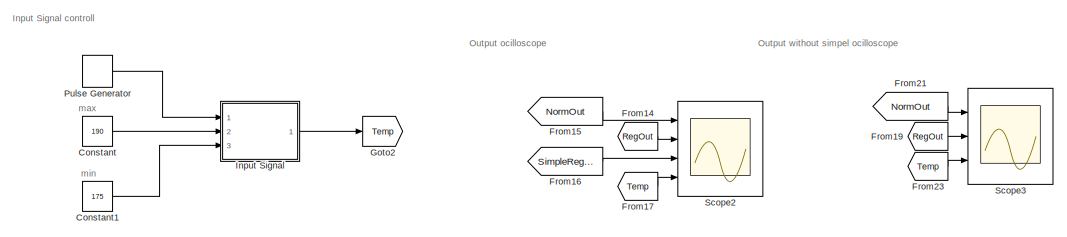
[diagram: root canvas - part 1/12, top center region]
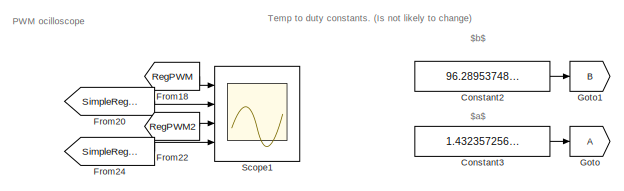
[diagram: root canvas - part 2/12, top right region]
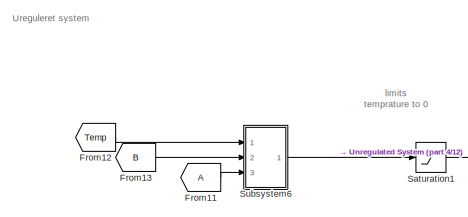
[diagram: root canvas - part 3/12, top left region]
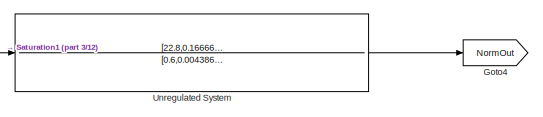
[diagram: root canvas - part 4/12, top right region]
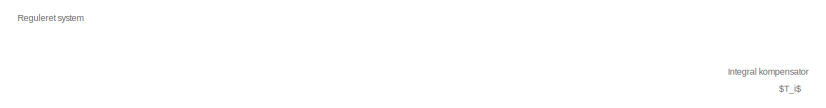
[diagram: root canvas - part 5/12, middle left region]
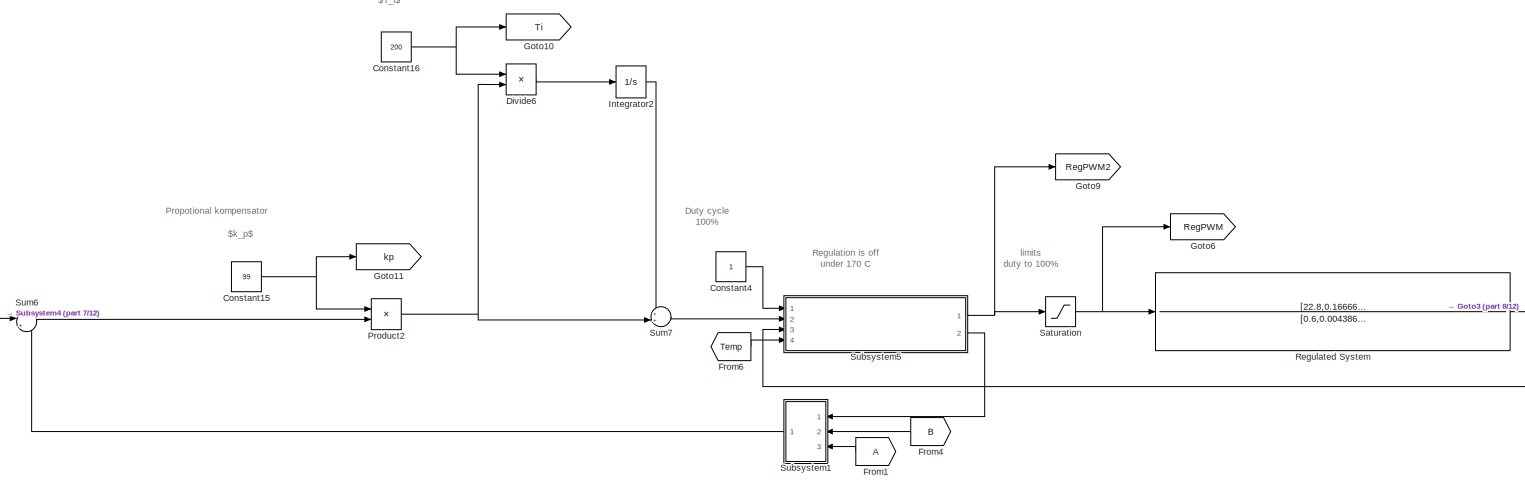
[diagram: root canvas - part 6/12, central region]
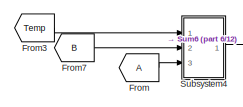
[diagram: root canvas - part 7/12, middle left region]
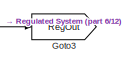
[diagram: root canvas - part 8/12, middle right region]
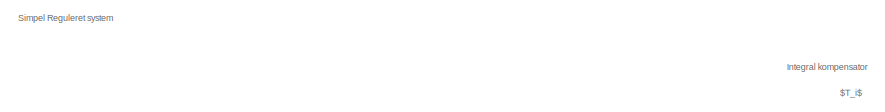
[diagram: root canvas - part 9/12, bottom left region]
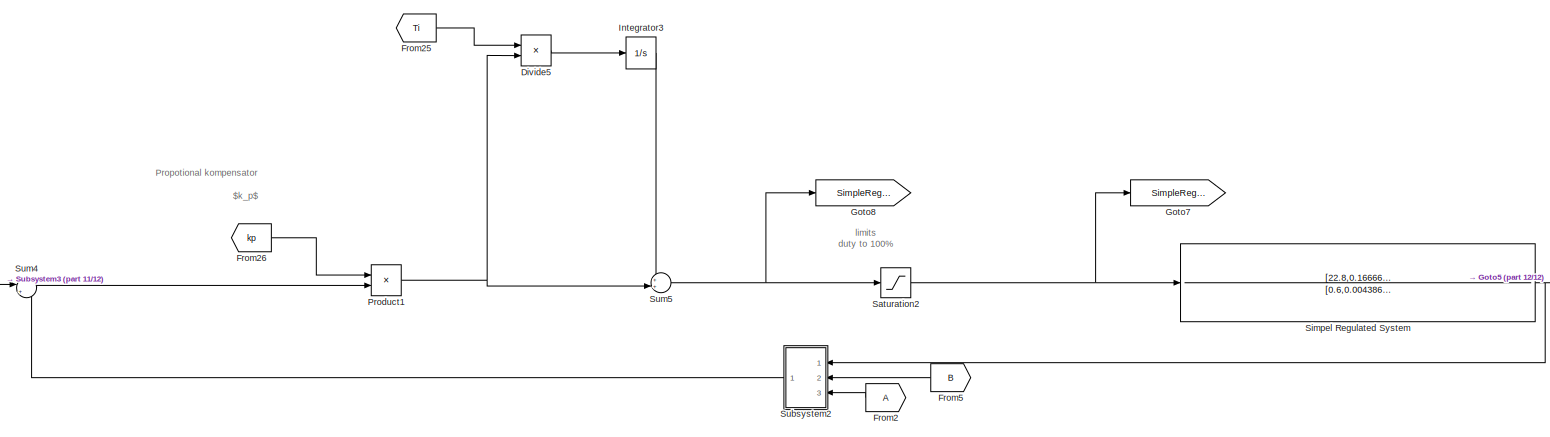
[diagram: root canvas - part 10/12, bottom center region]
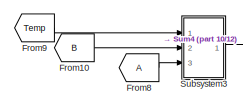
[diagram: root canvas - part 11/12, bottom left region]
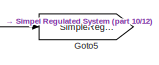
[diagram: root canvas - part 12/12, bottom right region]
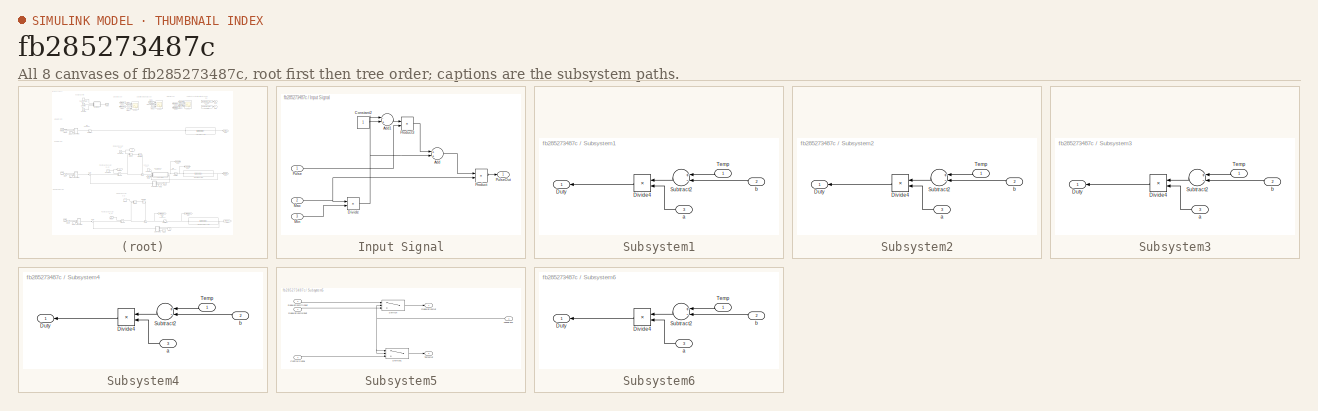
[diagram: thumbnail index - all 8 canvases of the model, root first then tree order]
MODEL slx_fb285273487c
KIND model
CONFIG AbsTol = auto
CONFIG EnableMultiTasking = off
CONFIG FixedStep = auto
CONFIG MaxStep = auto
CONFIG MinStep = auto
CONFIG RelTol = 1e-3
CONFIG SampleTimeConstraint = Unconstrained
CONFIG Solver = VariableStepAuto
CONFIG SolverName = VariableStepAuto
CONFIG StartTime = 0.0
CONFIG StopTime = 28800
BLOCK [Constant] Constant
  Value = 190
BLOCK [Constant] Constant1
  Value = 175
BLOCK [Constant] Constant15
  Value = 99
BLOCK [Constant] Constant16
  Value = 200
BLOCK [Constant] Constant2
  Value = 96.289537480061580
BLOCK [Constant] Constant3
  Value = 1.432357256778349e+02
BLOCK [Constant] Constant4
BLOCK [Product] Divide5
  InputSameDT = off
  Inputs = /*
  OutDataTypeStr = Inherit: Inherit via internal rule
  Ports = [2, 1]
  RndMeth = Floor
  SaturateOnIntegerOverflow = off
BLOCK [Product] Divide6
  InputSameDT = off
  Inputs = /*
  OutDataTypeStr = Inherit: Inherit via internal rule
  Ports = [2, 1]
  RndMeth = Floor
  SaturateOnIntegerOverflow = off
BLOCK [From] From
BLOCK [From] From1
BLOCK [From] From10
  GotoTag = B
BLOCK [From] From11
BLOCK [From] From12
  GotoTag = Temp
BLOCK [From] From13
  GotoTag = B
BLOCK [From] From14
  GotoTag = RegOut
BLOCK [From] From15
  GotoTag = NormOut
BLOCK [From] From16
  GotoTag = SimpleRegOut
BLOCK [From] From17
  GotoTag = Temp
BLOCK [From] From18
  GotoTag = RegPWM
BLOCK [From] From19
  GotoTag = RegOut
BLOCK [From] From2
BLOCK [From] From20
  GotoTag = SimpleRegPWM
BLOCK [From] From21
  GotoTag = NormOut
BLOCK [From] From22
  GotoTag = RegPWM2
BLOCK [From] From23
  GotoTag = Temp
BLOCK [From] From24
  GotoTag = SimpleRegPWM2
BLOCK [From] From25
  GotoTag = Ti
BLOCK [From] From26
  GotoTag = kp
BLOCK [From] From3
  GotoTag = Temp
BLOCK [From] From4
  GotoTag = B
BLOCK [From] From5
  GotoTag = B
BLOCK [From] From6
  GotoTag = Temp
BLOCK [From] From7
  GotoTag = B
BLOCK [From] From8
BLOCK [From] From9
  GotoTag = Temp
BLOCK [Goto] Goto
BLOCK [Goto] Goto1
  GotoTag = B
BLOCK [Goto] Goto10
  GotoTag = Ti
BLOCK [Goto] Goto11
  GotoTag = kp
BLOCK [Goto] Goto2
  GotoTag = Temp
BLOCK [Goto] Goto3
  GotoTag = RegOut
BLOCK [Goto] Goto4
  GotoTag = NormOut
BLOCK [Goto] Goto5
  GotoTag = SimpleRegOut
BLOCK [Goto] Goto6
  GotoTag = RegPWM
BLOCK [Goto] Goto7
  GotoTag = SimpleRegPWM
BLOCK [Goto] Goto8
  GotoTag = SimpleRegPWM2
BLOCK [Goto] Goto9
  GotoTag = RegPWM2
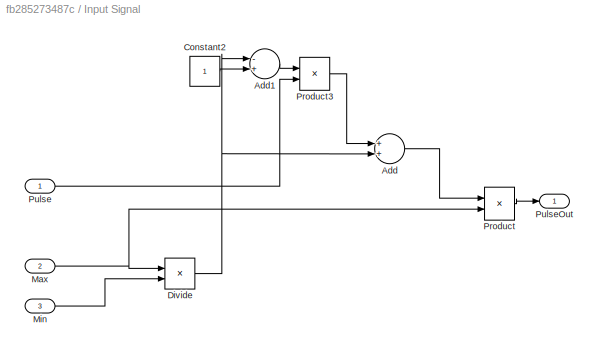
BLOCK [SubSystem] Input Signal
  Ports = [3, 1]
  RequestExecContextInheritance = off
BLOCK [Sum] Input Signal/Add
  InputSameDT = off
  OutDataTypeStr = Inherit: Inherit via internal rule
  Ports = [2, 1]
  SaturateOnIntegerOverflow = off
BLOCK [Sum] Input Signal/Add1
  InputSameDT = off
  Inputs = -+
  OutDataTypeStr = Inherit: Inherit via internal rule
  Ports = [2, 1]
  SaturateOnIntegerOverflow = off
BLOCK [Constant] Input Signal/Constant2
BLOCK [Product] Input Signal/Divide
  InputSameDT = off
  Inputs = /*
  OutDataTypeStr = Inherit: Inherit via internal rule
  Ports = [2, 1]
  RndMeth = Floor
  SaturateOnIntegerOverflow = off
BLOCK [Inport] Input Signal/Max
  IconDisplay = Port number
  Port = 2
BLOCK [Inport] Input Signal/Min
  IconDisplay = Port number
  Port = 3
BLOCK [Product] Input Signal/Product
  InputSameDT = off
  OutDataTypeStr = Inherit: Inherit via internal rule
  Ports = [2, 1]
  RndMeth = Floor
  SaturateOnIntegerOverflow = off
BLOCK [Product] Input Signal/Product3
  InputSameDT = off
  OutDataTypeStr = Inherit: Inherit via internal rule
  Ports = [2, 1]
  RndMeth = Floor
  SaturateOnIntegerOverflow = off
BLOCK [Inport] Input Signal/Pulse
  IconDisplay = Port number
BLOCK [Outport] Input Signal/PulseOut
  IconDisplay = Port number
BLOCK [Integrator] Integrator2
  Ports = [1, 1]
BLOCK [Integrator] Integrator3
  Ports = [1, 1]
BLOCK [Product] Product1
  InputSameDT = off
  OutDataTypeStr = Inherit: Inherit via internal rule
  Ports = [2, 1]
  RndMeth = Floor
  SaturateOnIntegerOverflow = off
BLOCK [Product] Product2
  InputSameDT = off
  OutDataTypeStr = Inherit: Inherit via internal rule
  Ports = [2, 1]
  RndMeth = Floor
  SaturateOnIntegerOverflow = off
BLOCK [DiscretePulseGenerator] Pulse Generator
  Period = 14400
  PhaseDelay = 7200
  Ports = [0, 1]
  PulseType = Time based
  PulseWidth = 50
BLOCK [TransferFcn] Regulated System
  Denominator = [0.6,0.004386,1.1094e-05]
  Numerator = [22.8,0.166668,0.00323575]
BLOCK [Saturate] Saturation
  InputPortMap = u0
  LowerLimit = 0
  Ports = [1, 1]
  UpperLimit = 1
BLOCK [Saturate] Saturation1
  InputPortMap = u0
  LowerLimit = 0
  Ports = [1, 1]
  UpperLimit = 400
BLOCK [Saturate] Saturation2
  InputPortMap = u0
  LowerLimit = 0
  Ports = [1, 1]
  UpperLimit = 1
BLOCK [Scope] Scope1
  Floating = off
  NumInputPorts = 4
  Ports = [4]
  ScopeSpecificationString = Simulink.scopes.TimeScopeBlockCfg('CurrentConfiguration', extmgr.ConfigurationSet(extmgr.Configuration('Core','General UI',true),extmgr.Configuration('Core','Source UI',true),extmgr.Configuration('Sources','WiredSimulink',true),extmgr.Configuration('Visuals','Time Domain',true,'SerializedDisplays',{struct('MinYLimReal','-2.28213','MaxYLimReal','11.32673','YLabelReal','','MinYLimMag','0.00000','Max...<+1756ch>
BLOCK [Scope] Scope2
  Floating = off
  NumInputPorts = 4
  Ports = [4]
  ScopeSpecificationString = Simulink.scopes.TimeScopeBlockCfg('CurrentConfiguration', extmgr.ConfigurationSet(extmgr.Configuration('Core','General UI',true),extmgr.Configuration('Core','Source UI',true),extmgr.Configuration('Sources','WiredSimulink',true,'DataLoggingVariableName','ScopeData2'),extmgr.Configuration('Visuals','Time Domain',true,'SerializedDisplays',{struct('MinYLimReal','0.04562','MaxYLimReal','256.75104','YLa...<+1854ch>
BLOCK [Scope] Scope3
  Floating = off
  NumInputPorts = 3
  Ports = [3]
  ScopeSpecificationString = Simulink.scopes.TimeScopeBlockCfg('CurrentConfiguration', extmgr.ConfigurationSet(extmgr.Configuration('Core','General UI',true),extmgr.Configuration('Core','Source UI',true),extmgr.Configuration('Sources','WiredSimulink',true,'DataLoggingVariableName','ScopeData1'),extmgr.Configuration('Visuals','Time Domain',true,'SerializedDisplays',{struct('MinYLimReal','-0.38131','MaxYLimReal','212.24821','YL...<+1869ch>
BLOCK [TransferFcn] Simpel Regulated System
  Denominator = [0.6,0.004386,1.1094e-05]
  Numerator = [22.8,0.166668,0.00323575]
BLOCK [SubSystem] Subsystem1
  Ports = [3, 1]
  RequestExecContextInheritance = off
BLOCK [Product] Subsystem1/Divide4
  InputSameDT = off
  Inputs = */
  OutDataTypeStr = Inherit: Inherit via internal rule
  Ports = [2, 1]
  RndMeth = Floor
  SaturateOnIntegerOverflow = off
BLOCK [Outport] Subsystem1/Duty
  IconDisplay = Port number
BLOCK [Sum] Subsystem1/Subtract2
  InputSameDT = off
  Inputs = +-
  OutDataTypeStr = Inherit: Inherit via internal rule
  Ports = [2, 1]
  SaturateOnIntegerOverflow = off
BLOCK [Inport] Subsystem1/Temp
  IconDisplay = Port number
BLOCK [Inport] Subsystem1/a
  IconDisplay = Port number
  Port = 3
BLOCK [Inport] Subsystem1/b
  IconDisplay = Port number
  Port = 2
BLOCK [SubSystem] Subsystem2
  Ports = [3, 1]
  RequestExecContextInheritance = off
BLOCK [Product] Subsystem2/Divide4
  InputSameDT = off
  Inputs = */
  OutDataTypeStr = Inherit: Inherit via internal rule
  Ports = [2, 1]
  RndMeth = Floor
  SaturateOnIntegerOverflow = off
BLOCK [Outport] Subsystem2/Duty
  IconDisplay = Port number
BLOCK [Sum] Subsystem2/Subtract2
  InputSameDT = off
  Inputs = +-
  OutDataTypeStr = Inherit: Inherit via internal rule
  Ports = [2, 1]
  SaturateOnIntegerOverflow = off
BLOCK [Inport] Subsystem2/Temp
  IconDisplay = Port number
BLOCK [Inport] Subsystem2/a
  IconDisplay = Port number
  Port = 3
BLOCK [Inport] Subsystem2/b
  IconDisplay = Port number
  Port = 2
BLOCK [SubSystem] Subsystem3
  Ports = [3, 1]
  RequestExecContextInheritance = off
BLOCK [Product] Subsystem3/Divide4
  InputSameDT = off
  Inputs = */
  OutDataTypeStr = Inherit: Inherit via internal rule
  Ports = [2, 1]
  RndMeth = Floor
  SaturateOnIntegerOverflow = off
BLOCK [Outport] Subsystem3/Duty
  IconDisplay = Port number
BLOCK [Sum] Subsystem3/Subtract2
  InputSameDT = off
  Inputs = +-
  OutDataTypeStr = Inherit: Inherit via internal rule
  Ports = [2, 1]
  SaturateOnIntegerOverflow = off
BLOCK [Inport] Subsystem3/Temp
  IconDisplay = Port number
BLOCK [Inport] Subsystem3/a
  IconDisplay = Port number
  Port = 3
BLOCK [Inport] Subsystem3/b
  IconDisplay = Port number
  Port = 2
BLOCK [SubSystem] Subsystem4
  Ports = [3, 1]
  RequestExecContextInheritance = off
BLOCK [Product] Subsystem4/Divide4
  InputSameDT = off
  Inputs = */
  OutDataTypeStr = Inherit: Inherit via internal rule
  Ports = [2, 1]
  RndMeth = Floor
  SaturateOnIntegerOverflow = off
BLOCK [Outport] Subsystem4/Duty
  IconDisplay = Port number
BLOCK [Sum] Subsystem4/Subtract2
  InputSameDT = off
  Inputs = +-
  OutDataTypeStr = Inherit: Inherit via internal rule
  Ports = [2, 1]
  SaturateOnIntegerOverflow = off
BLOCK [Inport] Subsystem4/Temp
  IconDisplay = Port number
BLOCK [Inport] Subsystem4/a
  IconDisplay = Port number
  Port = 3
BLOCK [Inport] Subsystem4/b
  IconDisplay = Port number
  Port = 2
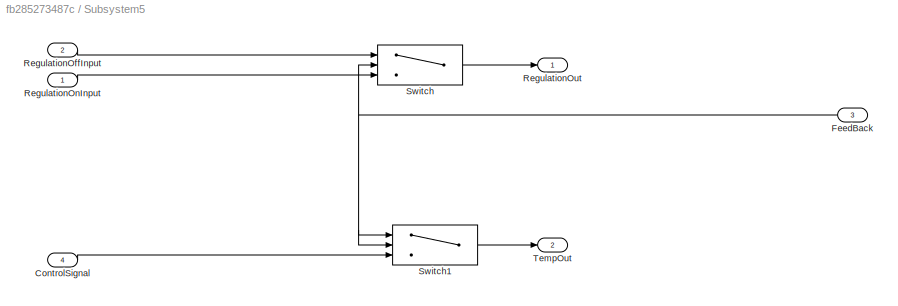
BLOCK [SubSystem] Subsystem5
  Ports = [4, 2]
  RequestExecContextInheritance = off
BLOCK [Inport] Subsystem5/ControlSignal
  IconDisplay = Port number
  Port = 4
BLOCK [Inport] Subsystem5/FeedBack
  IconDisplay = Port number
  Port = 3
BLOCK [Inport] Subsystem5/RegulationOffInput
  IconDisplay = Port number
  Port = 2
BLOCK [Inport] Subsystem5/RegulationOnInput
  IconDisplay = Port number
BLOCK [Outport] Subsystem5/RegulationOut
  IconDisplay = Port number
BLOCK [Switch] Subsystem5/Switch
  Criteria = u2 > Threshold
  InputSameDT = off
  SaturateOnIntegerOverflow = off
  Threshold = 170
BLOCK [Switch] Subsystem5/Switch1
  Criteria = u2 > Threshold
  InputSameDT = off
  SaturateOnIntegerOverflow = off
  Threshold = 170
BLOCK [Outport] Subsystem5/TempOut
  IconDisplay = Port number
  Port = 2
BLOCK [SubSystem] Subsystem6
  Ports = [3, 1]
  RequestExecContextInheritance = off
BLOCK [Product] Subsystem6/Divide4
  InputSameDT = off
  Inputs = */
  OutDataTypeStr = Inherit: Inherit via internal rule
  Ports = [2, 1]
  RndMeth = Floor
  SaturateOnIntegerOverflow = off
BLOCK [Outport] Subsystem6/Duty
  IconDisplay = Port number
BLOCK [Sum] Subsystem6/Subtract2
  InputSameDT = off
  Inputs = +-
  OutDataTypeStr = Inherit: Inherit via internal rule
  Ports = [2, 1]
  SaturateOnIntegerOverflow = off
BLOCK [Inport] Subsystem6/Temp
  IconDisplay = Port number
BLOCK [Inport] Subsystem6/a
  IconDisplay = Port number
  Port = 3
BLOCK [Inport] Subsystem6/b
  IconDisplay = Port number
  Port = 2
BLOCK [Sum] Sum4
  IconShape = round
  InputSameDT = off
  Inputs = |+-
  OutDataTypeStr = Inherit: Inherit via internal rule
  Ports = [2, 1]
  SaturateOnIntegerOverflow = off
BLOCK [Sum] Sum5
  IconShape = round
  InputSameDT = off
  Inputs = ++|
  OutDataTypeStr = Inherit: Inherit via internal rule
  Ports = [2, 1]
  SaturateOnIntegerOverflow = off
BLOCK [Sum] Sum6
  IconShape = round
  InputSameDT = off
  Inputs = |+-
  OutDataTypeStr = Inherit: Inherit via internal rule
  Ports = [2, 1]
  SaturateOnIntegerOverflow = off
BLOCK [Sum] Sum7
  IconShape = round
  InputSameDT = off
  Inputs = ++|
  OutDataTypeStr = Inherit: Inherit via internal rule
  Ports = [2, 1]
  SaturateOnIntegerOverflow = off
BLOCK [TransferFcn] Unregulated System
  Denominator = [0.6,0.004386,1.1094e-05]
  Numerator = [22.8,0.166668,0.00323575]
ANNOTATION (root): Duty cycle 100%
ANNOTATION (root): Regulation is off under 170 C
ANNOTATION (root): limits temprature to 0
ANNOTATION (root): limits duty to 100%
ANNOTATION (root): $T_i$
ANNOTATION (root): $a$
ANNOTATION (root): $b$
ANNOTATION (root): $k_p$
ANNOTATION (root): Input Signal controll
ANNOTATION (root): Integral kompensator
ANNOTATION (root): Output ocilloscope
ANNOTATION (root): Output without simpel ocilloscope
ANNOTATION (root): PWM ocilloscope
ANNOTATION (root): Propotional kompensator
ANNOTATION (root): Reguleret system
ANNOTATION (root): Simpel Reguleret system
ANNOTATION (root): Temp to duty constants. (Is not likely to change)
ANNOTATION (root): Ureguleret system
ANNOTATION (root): max
ANNOTATION (root): min
NET Constant15:1 -> Goto11:1, Product2:1
NET Constant16:1 -> Divide6:1, Goto10:1
LINE Constant1:1 -> Input Signal:3
LINE Constant2:1 -> Goto1:1
LINE Constant3:1 -> Goto:1
LINE Constant4:1 -> Subsystem5:1
LINE Constant:1 -> Input Signal:2
LINE Divide5:1 -> Integrator3:1
LINE Divide6:1 -> Integrator2:1
LINE From10:1 -> Subsystem3:2
LINE From11:1 -> Subsystem6:3
LINE From12:1 -> Subsystem6:1
LINE From13:1 -> Subsystem6:2
LINE From14:1 -> Scope2:2
LINE From15:1 -> Scope2:1
LINE From16:1 -> Scope2:3
LINE From17:1 -> Scope2:4
LINE From18:1 -> Scope1:1
LINE From19:1 -> Scope3:2
LINE From1:1 -> Subsystem1:3
LINE From20:1 -> Scope1:2
LINE From21:1 -> Scope3:1
LINE From22:1 -> Scope1:3
LINE From23:1 -> Scope3:3
LINE From24:1 -> Scope1:4
LINE From25:1 -> Divide5:1
LINE From26:1 -> Product1:1
LINE From2:1 -> Subsystem2:3
LINE From3:1 -> Subsystem4:1
LINE From4:1 -> Subsystem1:2
LINE From5:1 -> Subsystem2:2
LINE From6:1 -> Subsystem5:4
LINE From7:1 -> Subsystem4:2
LINE From8:1 -> Subsystem3:3
LINE From9:1 -> Subsystem3:1
LINE From:1 -> Subsystem4:3
LINE Input Signal/Add1:1 -> Input Signal/Product3:1
LINE Input Signal/Add:1 -> Input Signal/Product:1
LINE Input Signal/Constant2:1 -> Input Signal/Add1:2
NET Input Signal/Divide:1 -> Input Signal/Add1:1, Input Signal/Add:2
NET Input Signal/Max:1 -> Input Signal/Divide:1, Input Signal/Product:2
LINE Input Signal/Min:1 -> Input Signal/Divide:2
LINE Input Signal/Product3:1 -> Input Signal/Add:1
LINE Input Signal/Product:1 -> Input Signal/PulseOut:1
LINE Input Signal/Pulse:1 -> Input Signal/Product3:2
LINE Input Signal:1 -> Goto2:1
LINE Integrator2:1 -> Sum7:1
LINE Integrator3:1 -> Sum5:1
NET Product1:1 -> Divide5:2, Sum5:2
NET Product2:1 -> Divide6:2, Sum7:2
LINE Pulse Generator:1 -> Input Signal:1
NET Regulated System:1 -> Goto3:1, Subsystem5:3
LINE Saturation1:1 -> Unregulated System:1
NET Saturation2:1 -> Goto7:1, Simpel Regulated System:1
NET Saturation:1 -> Goto6:1, Regulated System:1
NET Simpel Regulated System:1 -> Goto5:1, Subsystem2:1
LINE Subsystem1/Divide4:1 -> Subsystem1/Duty:1
LINE Subsystem1/Subtract2:1 -> Subsystem1/Divide4:1
LINE Subsystem1/Temp:1 -> Subsystem1/Subtract2:1
LINE Subsystem1/a:1 -> Subsystem1/Divide4:2
LINE Subsystem1/b:1 -> Subsystem1/Subtract2:2
LINE Subsystem1:1 -> Sum6:2
LINE Subsystem2/Divide4:1 -> Subsystem2/Duty:1
LINE Subsystem2/Subtract2:1 -> Subsystem2/Divide4:1
LINE Subsystem2/Temp:1 -> Subsystem2/Subtract2:1
LINE Subsystem2/a:1 -> Subsystem2/Divide4:2
LINE Subsystem2/b:1 -> Subsystem2/Subtract2:2
LINE Subsystem2:1 -> Sum4:2
LINE Subsystem3/Divide4:1 -> Subsystem3/Duty:1
LINE Subsystem3/Subtract2:1 -> Subsystem3/Divide4:1
LINE Subsystem3/Temp:1 -> Subsystem3/Subtract2:1
LINE Subsystem3/a:1 -> Subsystem3/Divide4:2
LINE Subsystem3/b:1 -> Subsystem3/Subtract2:2
LINE Subsystem3:1 -> Sum4:1
LINE Subsystem4/Divide4:1 -> Subsystem4/Duty:1
LINE Subsystem4/Subtract2:1 -> Subsystem4/Divide4:1
LINE Subsystem4/Temp:1 -> Subsystem4/Subtract2:1
LINE Subsystem4/a:1 -> Subsystem4/Divide4:2
LINE Subsystem4/b:1 -> Subsystem4/Subtract2:2
LINE Subsystem4:1 -> Sum6:1
LINE Subsystem5/ControlSignal:1 -> Subsystem5/Switch1:3
NET Subsystem5/FeedBack:1 -> Subsystem5/Switch1:1, Subsystem5/Switch1:2, Subsystem5/Switch:2
LINE Subsystem5/RegulationOffInput:1 -> Subsystem5/Switch:1
LINE Subsystem5/RegulationOnInput:1 -> Subsystem5/Switch:3
LINE Subsystem5/Switch1:1 -> Subsystem5/TempOut:1
LINE Subsystem5/Switch:1 -> Subsystem5/RegulationOut:1
NET Subsystem5:1 -> Goto9:1, Saturation:1
LINE Subsystem5:2 -> Subsystem1:1
LINE Subsystem6/Divide4:1 -> Subsystem6/Duty:1
LINE Subsystem6/Subtract2:1 -> Subsystem6/Divide4:1
LINE Subsystem6/Temp:1 -> Subsystem6/Subtract2:1
LINE Subsystem6/a:1 -> Subsystem6/Divide4:2
LINE Subsystem6/b:1 -> Subsystem6/Subtract2:2
LINE Subsystem6:1 -> Saturation1:1
LINE Sum4:1 -> Product1:2
NET Sum5:1 -> Goto8:1, Saturation2:1
LINE Sum6:1 -> Product2:2
LINE Sum7:1 -> Subsystem5:2
LINE Unregulated System:1 -> Goto4:1
note: NET lines group one-source signal fan-out (src -> all destinations, sorted); 1:1 wires keep LINE
